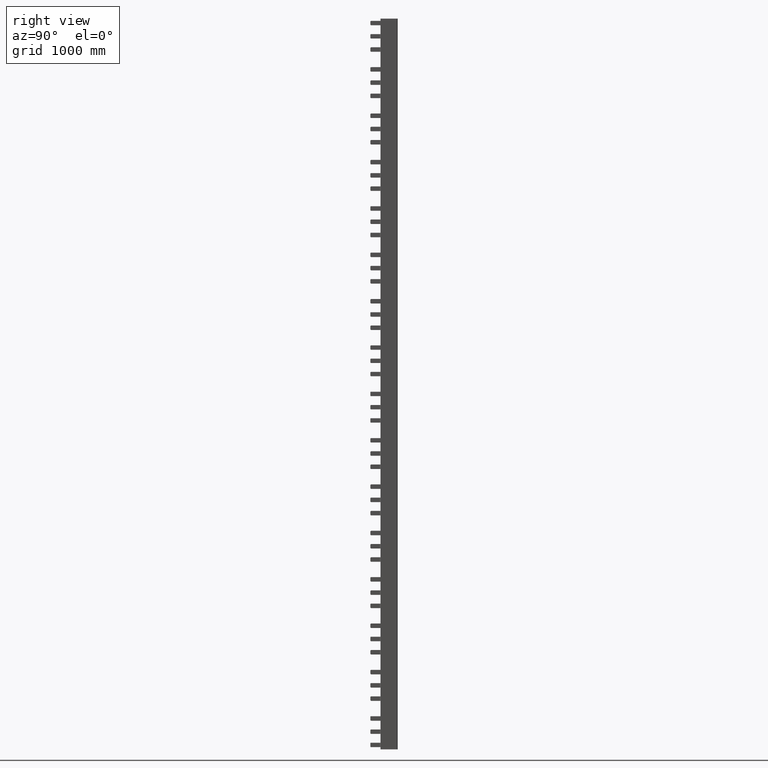
[diagram: clean part render]
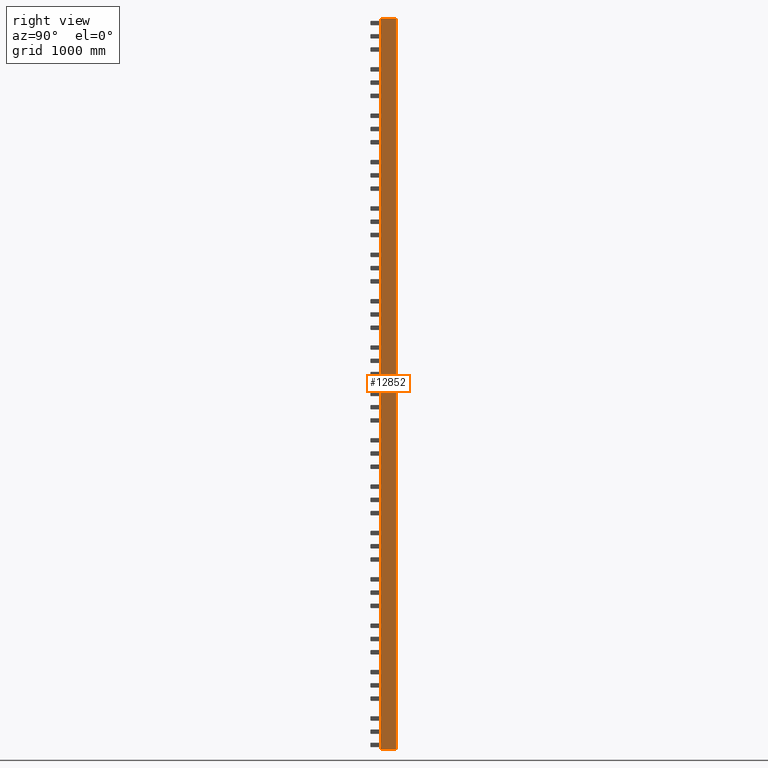
[diagram: same view with one face highlighted and labeled with its STEP entity id]
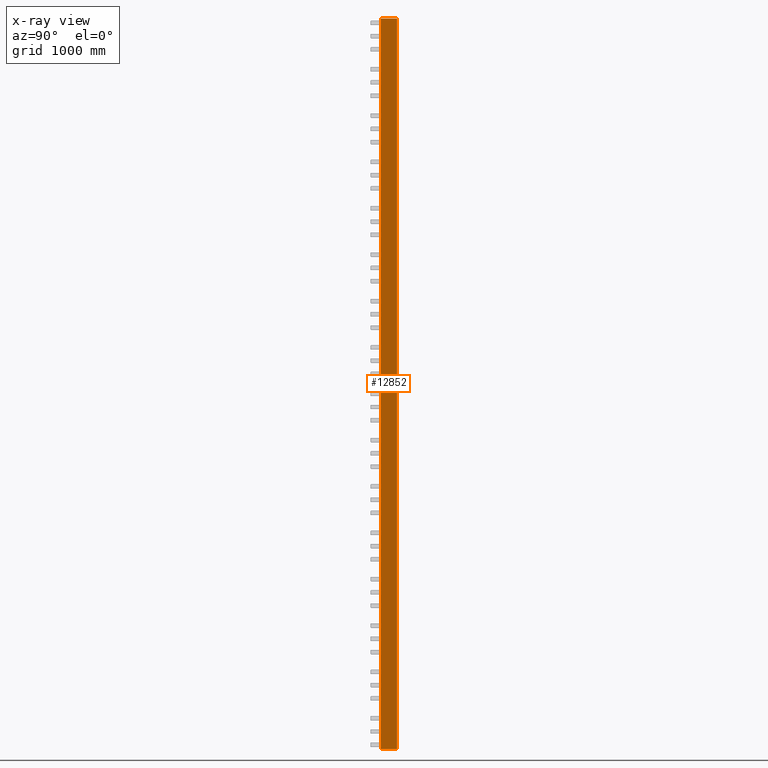
[diagram: x-ray of the same camera — body ghosted, the highlighted face saturated]
A machine part, right view. The second image highlights one B-rep face of the part: STEP entity #12852.
The next image is the same camera in x-ray: the body ghosted, the highlighted face saturated — about 0% of this face is hidden behind the body in this view.
In plain terms, the highlighted planar face has unit normal (1, 0, 0).
Its self-contained STEP definition (entity closure, byte-faithful):
#12326=CARTESIAN_POINT('',(6910.0208871467676,6266.4066631202204,-10000.0));
#12327=VERTEX_POINT('',#12326);
#12335=CARTESIAN_POINT('',(6910.0208871468158,6049.4066631202577,-10000.0));
#12336=VERTEX_POINT('',#12335);
#12337=CARTESIAN_POINT('',(6910.0208871468158,6049.4066631202577,-10000.0));
#12338=DIRECTION('',(-2.095610E-013,1.0,0.0));
#12339=VECTOR('',#12338,216.99999999996362);
#12340=LINE('',#12337,#12339);
#12341=EDGE_CURVE('',#12336,#12327,#12340,.T.);
#12678=CARTESIAN_POINT('',(6910.020887146813,6049.4066631202577,-180.0));
#12679=VERTEX_POINT('',#12678);
#12687=CARTESIAN_POINT('',(6910.0208871467676,6266.4066631202204,-180.0));
#12688=VERTEX_POINT('',#12687);
#12689=CARTESIAN_POINT('',(6910.0208871467676,6266.4066631202204,-180.0));
#12690=DIRECTION('',(2.179434E-013,-1.0,0.0));
#12691=VECTOR('',#12690,216.99999999996362);
#12692=LINE('',#12689,#12691);
#12693=EDGE_CURVE('',#12688,#12679,#12692,.T.);
#12813=CARTESIAN_POINT('',(6910.0208871467676,6266.4066631202204,-180.0));
#12814=DIRECTION('',(0.0,0.0,-1.0));
#12815=VECTOR('',#12814,9820.0);
#12816=LINE('',#12813,#12815);
#12817=EDGE_CURVE('',#12688,#12327,#12816,.T.);
#12832=CARTESIAN_POINT('',(6910.0208871468158,6049.4066631202577,-10000.0));
#12833=DIRECTION('',(0.0,0.0,1.0));
#12834=VECTOR('',#12833,9820.0);
#12835=LINE('',#12832,#12834);
#12836=EDGE_CURVE('',#12336,#12679,#12835,.T.);
#12841=CARTESIAN_POINT('',(6910.0208871468158,6046.4066631202568,0.0));
#12842=DIRECTION('',(1.0,2.162521E-013,0.0));
#12843=DIRECTION('',(0.0,0.0,-1.0));
#12844=AXIS2_PLACEMENT_3D('',#12841,#12842,#12843);
#12845=PLANE('',#12844);
#12846=ORIENTED_EDGE('',*,*,#12693,.T.);
#12847=ORIENTED_EDGE('',*,*,#12836,.F.);
#12848=ORIENTED_EDGE('',*,*,#12341,.T.);
#12849=ORIENTED_EDGE('',*,*,#12817,.F.);
#12850=EDGE_LOOP('',(#12846,#12847,#12848,#12849));
#12851=FACE_OUTER_BOUND('',#12850,.T.);
#12852=ADVANCED_FACE('',(#12851),#12845,.T.);